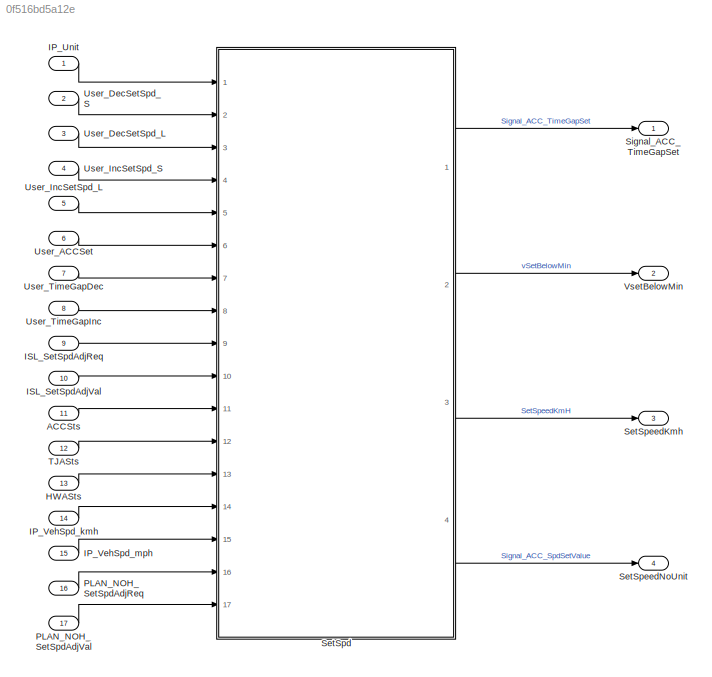
MODEL slx_0f516bd5a12e
KIND model
CONFIG AbsTol = auto
CONFIG EnableMultiTasking = off
CONFIG FixedStep = auto
CONFIG InitFcn = , if any(exist('dsmpb_private', 'file') ~= 0), dsmpb_private('dsmpb_mdlclblib', 'Init', bdroot); end,\n
CONFIG MaxStep = auto
CONFIG MinStep = auto
CONFIG PostLoadFcn = if any(exist('dsrtsu_mdlpostloadfcn', 'file') ~= 0), dsrtsu_mdlpostloadfcn('Execute', bdroot); end
CONFIG RelTol = 1e-3
CONFIG SampleTimeConstraint = Unconstrained
CONFIG SolverName = FixedStepAuto
CONFIG StartTime = 0.0
CONFIG StopTime = Inf
BLOCK [Inport] ACCSts
  OutDataTypeStr = Enum: ACC_STATE
  Port = 11
BLOCK [Inport] HWASts
  OutDataTypeStr = Enum: HWA_STATE
  Port = 13
BLOCK [Inport] IP_Unit
  OutDataTypeStr = boolean
BLOCK [Inport] IP_VehSpd_kmh
  OutDataTypeStr = single
  Port = 14
BLOCK [Inport] IP_VehSpd_mph
  OutDataTypeStr = single
  Port = 15
BLOCK [Inport] ISL_SetSpdAdjReq
  OutDataTypeStr = boolean
  Port = 9
BLOCK [Inport] ISL_SetSpdAdjVal
  OutDataTypeStr = uint8
  Port = 10
BLOCK [Inport] PLAN_NOH_SetSpdAdjReq
  OutDataTypeStr = boolean
  Port = 16
BLOCK [Inport] PLAN_NOH_SetSpdAdjVal
  OutDataTypeStr = uint8
  Port = 17
BLOCK [SubSystem] SetSpd
  Ports = [17, 4]
  ReferencedSubsystem = PvtSubSys_VSM_SetSpd
  RequestExecContextInheritance = off
BLOCK [Outport] SetSpeedKmh
  OutDataTypeStr = single
  Port = 3
BLOCK [Outport] SetSpeedNoUnit
  OutDataTypeStr = uint8
  Port = 4
BLOCK [Outport] Signal_ACC_TimeGapSet
  OutDataTypeStr = uint8
BLOCK [Inport] TJASts
  OutDataTypeStr = Enum: TJA_STATE
  Port = 12
BLOCK [Inport] User_ACCSet
  OutDataTypeStr = boolean
  Port = 6
BLOCK [Inport] User_DecSetSpd_L
  OutDataTypeStr = boolean
  Port = 3
BLOCK [Inport] User_DecSetSpd_S
  OutDataTypeStr = boolean
  Port = 2
BLOCK [Inport] User_IncSetSpd_L
  OutDataTypeStr = boolean
  Port = 5
BLOCK [Inport] User_IncSetSpd_S
  OutDataTypeStr = boolean
  Port = 4
BLOCK [Inport] User_TimeGapDec
  OutDataTypeStr = boolean
  Port = 7
BLOCK [Inport] User_TimeGapInc
  OutDataTypeStr = boolean
  Port = 8
BLOCK [Outport] VsetBelowMin
  OutDataTypeStr = boolean
  Port = 2
LINE ACCSts:1 -> SetSpd:11
LINE HWASts:1 -> SetSpd:13
LINE IP_Unit:1 -> SetSpd:1
LINE IP_VehSpd_kmh:1 -> SetSpd:14
LINE IP_VehSpd_mph:1 -> SetSpd:15
LINE ISL_SetSpdAdjReq:1 -> SetSpd:9
LINE ISL_SetSpdAdjVal:1 -> SetSpd:10
LINE PLAN_NOH_SetSpdAdjReq:1 -> SetSpd:16
LINE PLAN_NOH_SetSpdAdjVal:1 -> SetSpd:17
LINE SetSpd:1 -> Signal_ACC_TimeGapSet:1
LINE SetSpd:2 -> VsetBelowMin:1
LINE SetSpd:3 -> SetSpeedKmh:1
LINE SetSpd:4 -> SetSpeedNoUnit:1
LINE TJASts:1 -> SetSpd:12
LINE User_ACCSet:1 -> SetSpd:6
LINE User_DecSetSpd_L:1 -> SetSpd:3
LINE User_DecSetSpd_S:1 -> SetSpd:2
LINE User_IncSetSpd_L:1 -> SetSpd:5
LINE User_IncSetSpd_S:1 -> SetSpd:4
LINE User_TimeGapDec:1 -> SetSpd:7
LINE User_TimeGapInc:1 -> SetSpd:8
